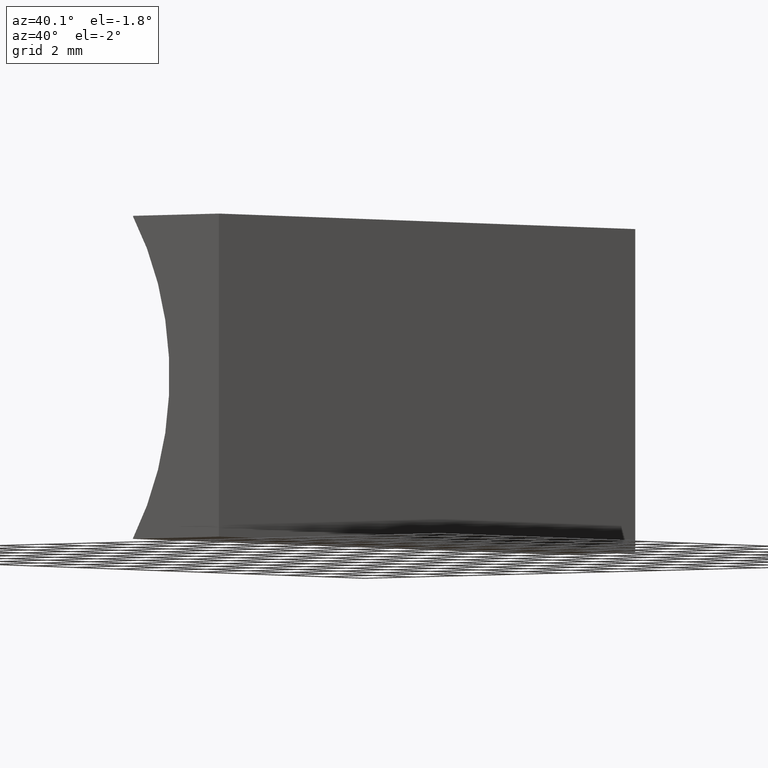
[diagram: clean part render]
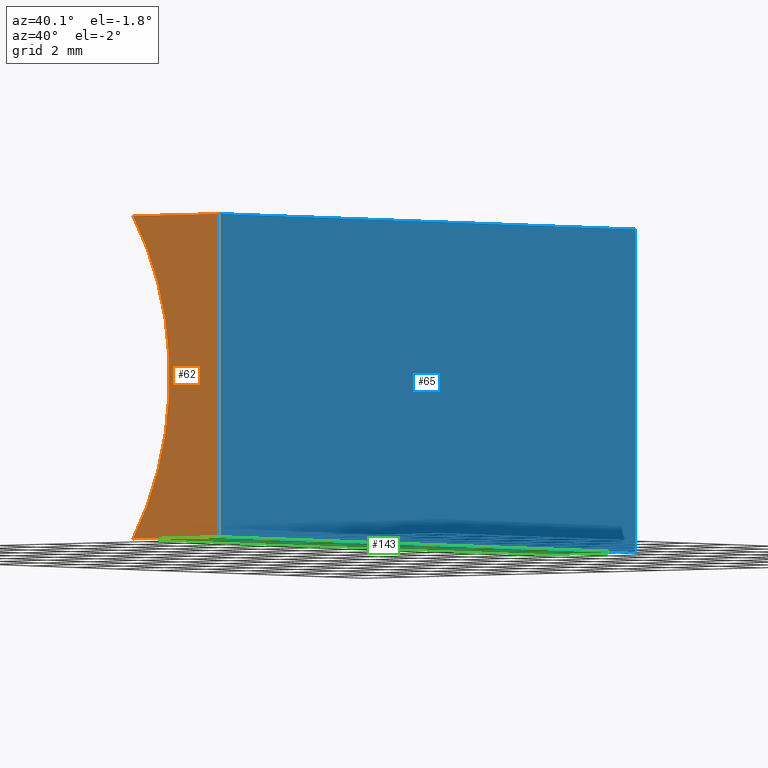
[diagram: same view with three faces highlighted in distinct colors, each labeled with its STEP entity id]
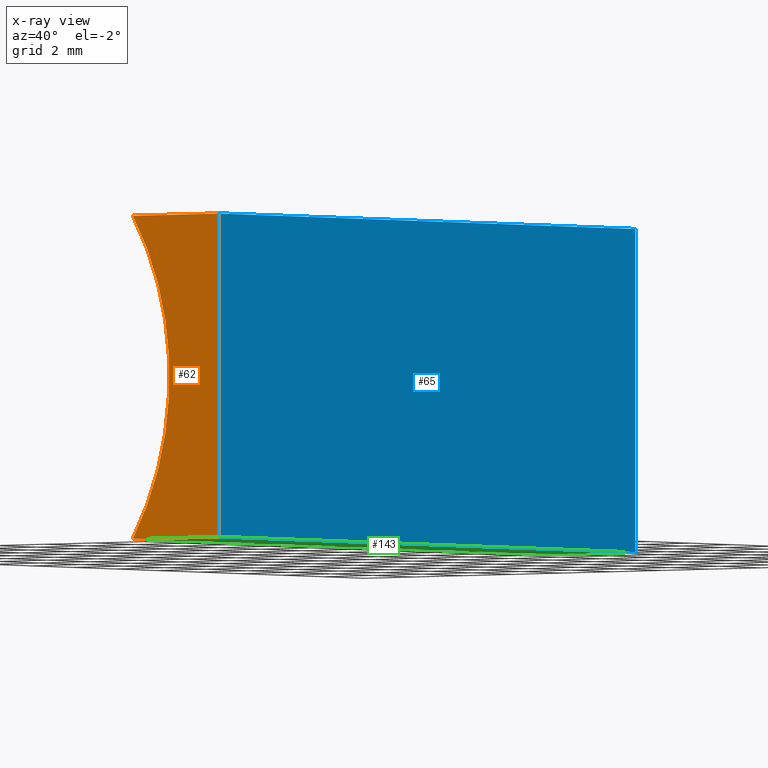
[diagram: x-ray of the same camera — body ghosted, the three highlighted faces saturated]
A machine part, auxiliary view with three faces highlighted in distinct colors.
The next image is the same camera in x-ray (body ghosted, the three faces saturated) — at least one of them is partly hidden behind the body in this view.
Their STEP definitions:

[orange] entity #62 — the highlighted planar face has unit normal (0, 1, 0).
#1 = EDGE_CURVE ( 'NONE', #180, #191, #66, .T. ) ;
#2 = PLANE ( 'NONE',  #148 ) ;
#9 = ORIENTED_EDGE ( 'NONE', *, *, #74, .F. ) ;
#14 = EDGE_LOOP ( 'NONE', ( #138, #37, #9, #60 ) ) ;
#15 = VECTOR ( 'NONE', #108, 1000.000000000000000 ) ;
#30 = DIRECTION ( 'NONE',  ( -0.0000000000000000000, -1.000000000000000000, -0.0000000000000000000 ) ) ;
#33 = EDGE_CURVE ( 'NONE', #39, #56, #149, .T. ) ;
#37 = ORIENTED_EDGE ( 'NONE', *, *, #33, .F. ) ;
#39 = VERTEX_POINT ( 'NONE', #70 ) ;
#50 = LINE ( 'NONE', #59, #15 ) ;
#55 = CARTESIAN_POINT ( 'NONE',  ( -3.485001628664672300, 0.0000000000000000000, -3.469446951953614200E-015 ) ) ;
#56 = VERTEX_POINT ( 'NONE', #131 ) ;
#57 = CARTESIAN_POINT ( 'NONE',  ( 6.123233995736766300E-016, 0.0000000000000000000, 10.00000000000000000 ) ) ;
#59 = CARTESIAN_POINT ( 'NONE',  ( 0.0000000000000000000, 0.0000000000000000000, 0.0000000000000000000 ) ) ;
#60 = ORIENTED_EDGE ( 'NONE', *, *, #1, .F. ) ;
#62 = ADVANCED_FACE ( 'NONE', ( #86 ), #2, .F. ) ;
#66 = CIRCLE ( 'NONE', #80, 9.159999999999998400 ) ;
#70 = CARTESIAN_POINT ( 'NONE',  ( 6.123233995736766300E-016, 0.0000000000000000000, 10.00000000000000000 ) ) ;
#74 = EDGE_CURVE ( 'NONE', #191, #39, #189, .T. ) ;
#76 = CARTESIAN_POINT ( 'NONE',  ( -11.16000000000000000, 0.0000000000000000000, 5.000000000000000000 ) ) ;
#77 = CARTESIAN_POINT ( 'NONE',  ( 0.0000000000000000000, 0.0000000000000000000, 0.0000000000000000000 ) ) ;
#80 = AXIS2_PLACEMENT_3D ( 'NONE', #170, #30, #91 ) ;
#82 = DIRECTION ( 'NONE',  ( -6.123233995736766000E-017, -0.0000000000000000000, -1.000000000000000000 ) ) ;
#86 = FACE_OUTER_BOUND ( 'NONE', #14, .T. ) ;
#91 = DIRECTION ( 'NONE',  ( 0.0000000000000000000, 0.0000000000000000000, 1.000000000000000000 ) ) ;
#102 = EDGE_CURVE ( 'NONE', #56, #180, #50, .T. ) ;
#105 = DIRECTION ( 'NONE',  ( 1.000000000000000000, -0.0000000000000000000, -4.977683401087795800E-016 ) ) ;
#108 = DIRECTION ( 'NONE',  ( -1.000000000000000000, 0.0000000000000000000, -4.977683401087794900E-016 ) ) ;
#121 = VECTOR ( 'NONE', #82, 1000.000000000000000 ) ;
#131 = CARTESIAN_POINT ( 'NONE',  ( 0.0000000000000000000, 0.0000000000000000000, 0.0000000000000000000 ) ) ;
#132 = VECTOR ( 'NONE', #105, 1000.000000000000000 ) ;
#138 = ORIENTED_EDGE ( 'NONE', *, *, #102, .F. ) ;
#148 = AXIS2_PLACEMENT_3D ( 'NONE', #76, #167, #174 ) ;
#149 = LINE ( 'NONE', #77, #121 ) ;
#167 = DIRECTION ( 'NONE',  ( 0.0000000000000000000, 1.000000000000000000, 0.0000000000000000000 ) ) ;
#170 = CARTESIAN_POINT ( 'NONE',  ( -11.16000000000000000, 0.0000000000000000000, 5.000000000000000000 ) ) ;
#174 = DIRECTION ( 'NONE',  ( 0.0000000000000000000, -0.0000000000000000000, 1.000000000000000000 ) ) ;
#180 = VERTEX_POINT ( 'NONE', #55 ) ;
#189 = LINE ( 'NONE', #57, #132 ) ;
#191 = VERTEX_POINT ( 'NONE', #199 ) ;
#199 = CARTESIAN_POINT ( 'NONE',  ( -3.485001628664671400, 0.0000000000000000000, 10.00000000000000200 ) ) ;

[blue] entity #65 — the highlighted planar face has unit normal (-1, 0, 0).
#7 = EDGE_CURVE ( 'NONE', #26, #48, #144, .T. ) ;
#13 = EDGE_CURVE ( 'NONE', #26, #39, #18, .T. ) ;
#17 = CARTESIAN_POINT ( 'NONE',  ( 6.123233995736766300E-016, 20.00000000000000000, 10.00000000000000000 ) ) ;
#18 = LINE ( 'NONE', #147, #197 ) ;
#26 = VERTEX_POINT ( 'NONE', #17 ) ;
#32 = DIRECTION ( 'NONE',  ( -6.123233995736766000E-017, -0.0000000000000000000, -1.000000000000000000 ) ) ;
#33 = EDGE_CURVE ( 'NONE', #39, #56, #149, .T. ) ;
#36 = AXIS2_PLACEMENT_3D ( 'NONE', #130, #196, #81 ) ;
#38 = ORIENTED_EDGE ( 'NONE', *, *, #33, .T. ) ;
#39 = VERTEX_POINT ( 'NONE', #70 ) ;
#42 = PLANE ( 'NONE',  #36 ) ;
#46 = VECTOR ( 'NONE', #145, 1000.000000000000000 ) ;
#48 = VERTEX_POINT ( 'NONE', #127 ) ;
#52 = ORIENTED_EDGE ( 'NONE', *, *, #13, .T. ) ;
#56 = VERTEX_POINT ( 'NONE', #131 ) ;
#58 = CARTESIAN_POINT ( 'NONE',  ( 0.0000000000000000000, 20.00000000000000000, 0.0000000000000000000 ) ) ;
#65 = ADVANCED_FACE ( 'NONE', ( #142 ), #42, .F. ) ;
#70 = CARTESIAN_POINT ( 'NONE',  ( 6.123233995736766300E-016, 0.0000000000000000000, 10.00000000000000000 ) ) ;
#75 = CARTESIAN_POINT ( 'NONE',  ( 0.0000000000000000000, 20.00000000000000000, 0.0000000000000000000 ) ) ;
#77 = CARTESIAN_POINT ( 'NONE',  ( 0.0000000000000000000, 0.0000000000000000000, 0.0000000000000000000 ) ) ;
#81 = DIRECTION ( 'NONE',  ( 6.123233995736766000E-017, 0.0000000000000000000, 1.000000000000000000 ) ) ;
#82 = DIRECTION ( 'NONE',  ( -6.123233995736766000E-017, -0.0000000000000000000, -1.000000000000000000 ) ) ;
#103 = VECTOR ( 'NONE', #32, 1000.000000000000000 ) ;
#112 = ORIENTED_EDGE ( 'NONE', *, *, #7, .F. ) ;
#117 = LINE ( 'NONE', #58, #46 ) ;
#121 = VECTOR ( 'NONE', #82, 1000.000000000000000 ) ;
#127 = CARTESIAN_POINT ( 'NONE',  ( 0.0000000000000000000, 20.00000000000000000, 0.0000000000000000000 ) ) ;
#130 = CARTESIAN_POINT ( 'NONE',  ( 0.0000000000000000000, 20.00000000000000000, 0.0000000000000000000 ) ) ;
#131 = CARTESIAN_POINT ( 'NONE',  ( 0.0000000000000000000, 0.0000000000000000000, 0.0000000000000000000 ) ) ;
#142 = FACE_OUTER_BOUND ( 'NONE', #182, .T. ) ;
#144 = LINE ( 'NONE', #75, #103 ) ;
#145 = DIRECTION ( 'NONE',  ( -0.0000000000000000000, -1.000000000000000000, -0.0000000000000000000 ) ) ;
#147 = CARTESIAN_POINT ( 'NONE',  ( 6.123233995736766300E-016, 20.00000000000000000, 10.00000000000000000 ) ) ;
#149 = LINE ( 'NONE', #77, #121 ) ;
#150 = ORIENTED_EDGE ( 'NONE', *, *, #165, .F. ) ;
#165 = EDGE_CURVE ( 'NONE', #48, #56, #117, .T. ) ;
#177 = DIRECTION ( 'NONE',  ( -0.0000000000000000000, -1.000000000000000000, -0.0000000000000000000 ) ) ;
#182 = EDGE_LOOP ( 'NONE', ( #38, #150, #112, #52 ) ) ;
#196 = DIRECTION ( 'NONE',  ( -1.000000000000000000, 0.0000000000000000000, 6.123233995736766000E-017 ) ) ;
#197 = VECTOR ( 'NONE', #177, 1000.000000000000000 ) ;

[green] entity #143 — the highlighted planar face has unit normal (-0, 0, 1).
#5 = VECTOR ( 'NONE', #16, 1000.000000000000000 ) ;
#15 = VECTOR ( 'NONE', #108, 1000.000000000000000 ) ;
#16 = DIRECTION ( 'NONE',  ( -0.0000000000000000000, -1.000000000000000000, -0.0000000000000000000 ) ) ;
#20 = FACE_OUTER_BOUND ( 'NONE', #78, .T. ) ;
#22 = DIRECTION ( 'NONE',  ( 1.000000000000000000, 0.0000000000000000000, 4.977683401087794900E-016 ) ) ;
#27 = ORIENTED_EDGE ( 'NONE', *, *, #152, .F. ) ;
#29 = AXIS2_PLACEMENT_3D ( 'NONE', #111, #40, #22 ) ;
#40 = DIRECTION ( 'NONE',  ( -4.977683401087794900E-016, 0.0000000000000000000, 1.000000000000000000 ) ) ;
#46 = VECTOR ( 'NONE', #145, 1000.000000000000000 ) ;
#47 = DIRECTION ( 'NONE',  ( -1.000000000000000000, 0.0000000000000000000, -4.977683401087794900E-016 ) ) ;
#48 = VERTEX_POINT ( 'NONE', #127 ) ;
#49 = LINE ( 'NONE', #67, #5 ) ;
#50 = LINE ( 'NONE', #59, #15 ) ;
#55 = CARTESIAN_POINT ( 'NONE',  ( -3.485001628664672300, 0.0000000000000000000, -3.469446951953614200E-015 ) ) ;
#56 = VERTEX_POINT ( 'NONE', #131 ) ;
#58 = CARTESIAN_POINT ( 'NONE',  ( 0.0000000000000000000, 20.00000000000000000, 0.0000000000000000000 ) ) ;
#59 = CARTESIAN_POINT ( 'NONE',  ( 0.0000000000000000000, 0.0000000000000000000, 0.0000000000000000000 ) ) ;
#61 = VERTEX_POINT ( 'NONE', #96 ) ;
#67 = CARTESIAN_POINT ( 'NONE',  ( -3.485001628664672300, 20.00000000000000000, -3.469446951953614200E-015 ) ) ;
#69 = EDGE_CURVE ( 'NONE', #61, #180, #49, .T. ) ;
#78 = EDGE_LOOP ( 'NONE', ( #113, #87, #27, #101 ) ) ;
#79 = PLANE ( 'NONE',  #29 ) ;
#87 = ORIENTED_EDGE ( 'NONE', *, *, #69, .F. ) ;
#95 = LINE ( 'NONE', #153, #98 ) ;
#96 = CARTESIAN_POINT ( 'NONE',  ( -3.485001628664672300, 20.00000000000000000, -3.469446951953614200E-015 ) ) ;
#98 = VECTOR ( 'NONE', #47, 1000.000000000000000 ) ;
#101 = ORIENTED_EDGE ( 'NONE', *, *, #165, .T. ) ;
#102 = EDGE_CURVE ( 'NONE', #56, #180, #50, .T. ) ;
#108 = DIRECTION ( 'NONE',  ( -1.000000000000000000, 0.0000000000000000000, -4.977683401087794900E-016 ) ) ;
#111 = CARTESIAN_POINT ( 'NONE',  ( 0.0000000000000000000, 20.00000000000000000, 0.0000000000000000000 ) ) ;
#113 = ORIENTED_EDGE ( 'NONE', *, *, #102, .T. ) ;
#117 = LINE ( 'NONE', #58, #46 ) ;
#127 = CARTESIAN_POINT ( 'NONE',  ( 0.0000000000000000000, 20.00000000000000000, 0.0000000000000000000 ) ) ;
#131 = CARTESIAN_POINT ( 'NONE',  ( 0.0000000000000000000, 0.0000000000000000000, 0.0000000000000000000 ) ) ;
#143 = ADVANCED_FACE ( 'NONE', ( #20 ), #79, .F. ) ;
#145 = DIRECTION ( 'NONE',  ( -0.0000000000000000000, -1.000000000000000000, -0.0000000000000000000 ) ) ;
#152 = EDGE_CURVE ( 'NONE', #48, #61, #95, .T. ) ;
#153 = CARTESIAN_POINT ( 'NONE',  ( 0.0000000000000000000, 20.00000000000000000, 0.0000000000000000000 ) ) ;
#165 = EDGE_CURVE ( 'NONE', #48, #56, #117, .T. ) ;
#180 = VERTEX_POINT ( 'NONE', #55 ) ;